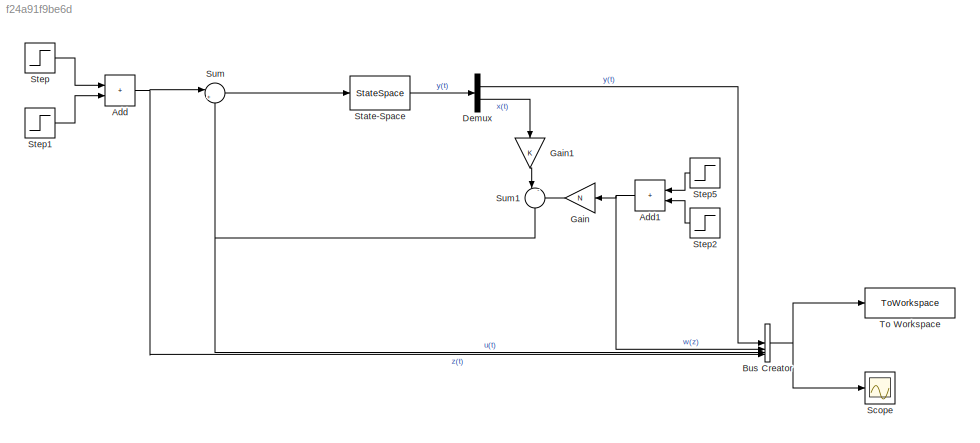
MODEL slx_f24a91f9be6d
KIND model
CONFIG AbsTol = auto
CONFIG EnableMultiTasking = off
CONFIG FixedStep = auto
CONFIG MaxStep = auto
CONFIG MinStep = auto
CONFIG RelTol = 1e-3
CONFIG SampleTimeConstraint = Unconstrained
CONFIG SolverName = VariableStepAuto
CONFIG StartTime = 0.0
CONFIG StopTime = 10.0
BLOCK [Sum] Add
  IconShape = rectangular
BLOCK [Sum] Add1
  IconShape = rectangular
  NameLocation = top
BLOCK [BusCreator] Bus Creator
  DisplayOption = bar
  InheritFromInputs = on
  Inputs = 4
BLOCK [Demux] Demux
  Outputs = [1, 2]
BLOCK [Gain] Gain
  Gain = N
  NameLocation = top
BLOCK [Gain] Gain1
  Gain = K
  Multiplication = Matrix(K*u)
  NameLocation = left
BLOCK [Scope] Scope
  Floating = off
  NumInputPorts = 1
  ScopeSpecificationString = Simulink.scopes.TimeScopeBlockCfg('CurrentConfiguration', extmgr.ConfigurationSet(extmgr.Configuration('Core','General UI',true),extmgr.Configuration('Core','Source UI',true),extmgr.Configuration('Sources','WiredSimulink',true),extmgr.Configuration('Visuals','Time Domain',true,'SerializedDisplays',{struct('MinYLimReal','-0.27951','MaxYLimReal','2.51558','YLabelReal','','MinYLimMag','0.00000','MaxY...<+1469ch>
BLOCK [StateSpace] State-Space
  A = A
  B = B
  C = [C; eye(size(A))]
  D = [D; zeros(size(B))]
  InitialCondition = 0
BLOCK [Step] Step
  After = - z * u_control
  SampleTime = 0
  Time = disorder_times(1)
BLOCK [Step] Step1
  After = z * u_control
  SampleTime = 0
  Time = disorder_times(2)
BLOCK [Step] Step2
  NameLocation = top
  SampleTime = 0
BLOCK [Step] Step5
  After = -1
  NameLocation = top
  SampleTime = 0
  Time = lqr_stop_time
BLOCK [Sum] Sum
  Inputs = |++
BLOCK [Sum] Sum1
  Inputs = |-+
  NameLocation = left
BLOCK [ToWorkspace] To Workspace
  FixptAsFi = on
  MaxDataPoints = inf
  SampleTime = -1
  SaveFormat = Timeseries
  VariableName = simout
NET Add1:1 -> Bus Creator:2, Gain:1
NET Add:1 -> Bus Creator:4, Sum:1
NET Bus Creator:1 -> Scope:1, To Workspace:1
LINE Demux:1 -> Bus Creator:1
LINE Demux:2 -> Gain1:1
LINE Gain1:1 -> Sum1:1
LINE Gain:1 -> Sum1:2
LINE State-Space:1 -> Demux:1
LINE Step1:1 -> Add:2
LINE Step2:1 -> Add1:2
LINE Step5:1 -> Add1:1
LINE Step:1 -> Add:1
NET Sum1:1 -> Bus Creator:3, Sum:2
LINE Sum:1 -> State-Space:1
note: NET lines group one-source signal fan-out (src -> all destinations, sorted); 1:1 wires keep LINE
